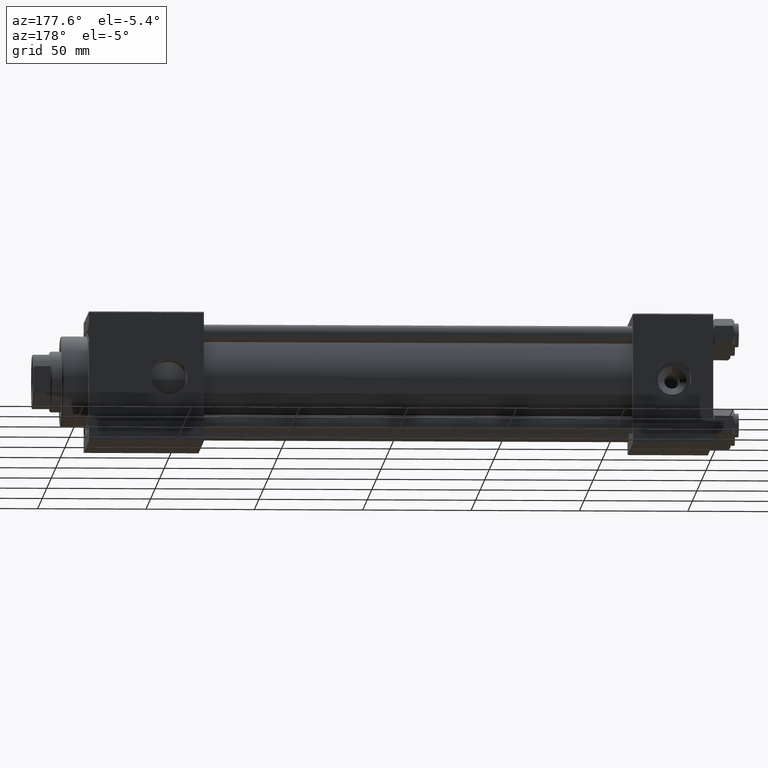
[diagram: clean part render]
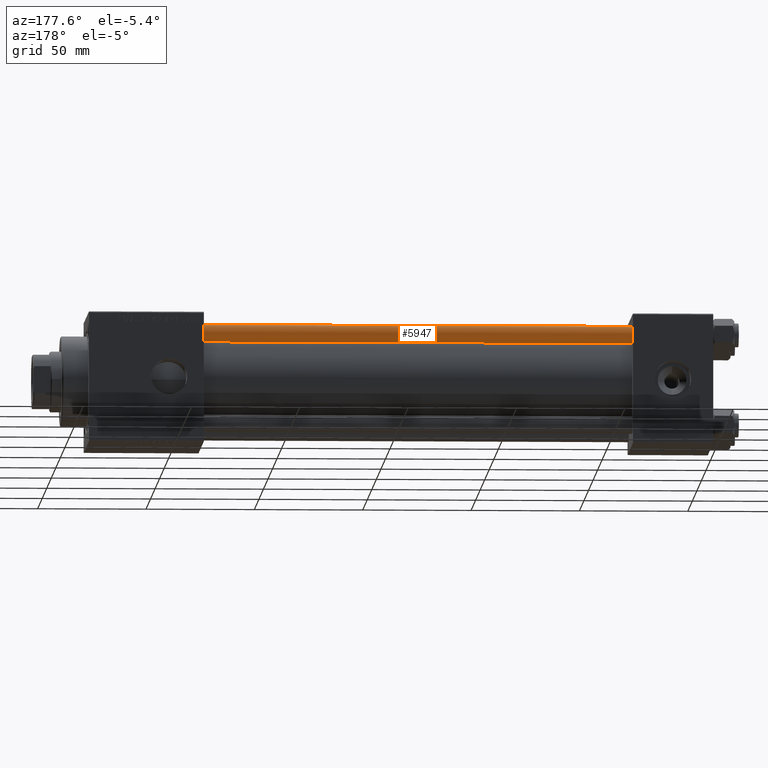
[diagram: same view with one face highlighted and labeled with its STEP entity id]
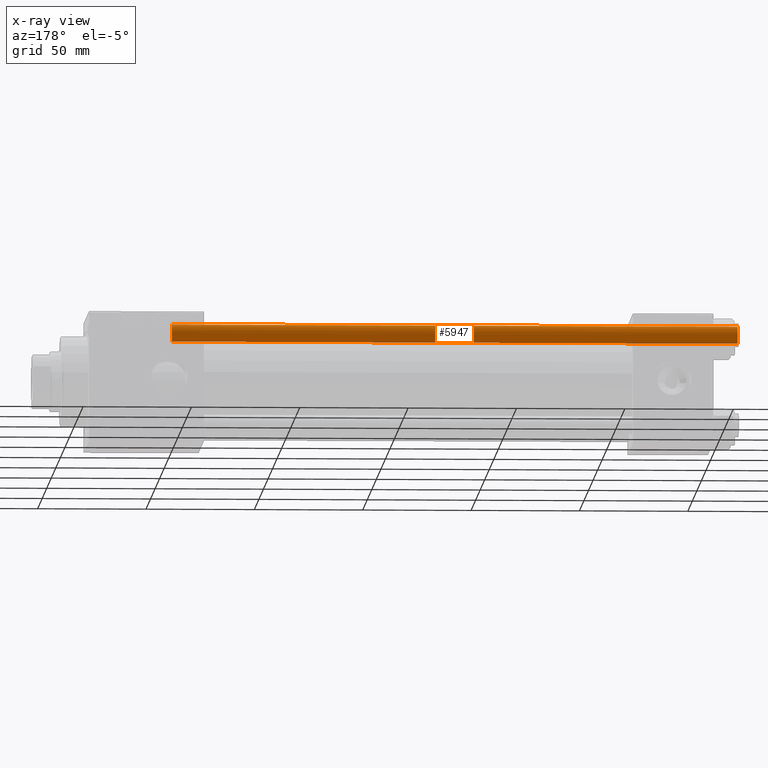
[diagram: x-ray of the same camera — body ghosted, the highlighted face saturated]
A machine part, auxiliary view. The second image highlights one B-rep face of the part: STEP entity #5947.
The next image is the same camera in x-ray: the body ghosted, the highlighted face saturated — about 0% of this face is hidden behind the body in this view.
In plain terms, the highlighted cylindrical surface (edge-blend (fillet) strip) has radius 4 mm, axis along (-1, 0, 0).
Its self-contained STEP definition (entity closure, byte-faithful):
#113 = CIRCLE ( 'NONE', #46831, 4.000000000000000000 ) ;
#4424 = DIRECTION ( 'NONE',  ( -1.000000000000000000, 0.000000000000000000, 0.000000000000000000 ) ) ;
#4858 = CARTESIAN_POINT ( 'NONE',  ( 0.000000000000000000, 0.000000000000000000, 261.5000000000000000 ) ) ;
#5947 = ADVANCED_FACE ( 'NONE', ( #32538 ), #28550, .T. ) ;
#6737 = CARTESIAN_POINT ( 'NONE',  ( 4.000000000000000000, 4.898587196589412829E-16, 262.0000000000000000 ) ) ;
#8128 = VERTEX_POINT ( 'NONE', #30590 ) ;
#8409 = DIRECTION ( 'NONE',  ( -0.000000000000000000, -0.000000000000000000, -1.000000000000000000 ) ) ;
#10594 = EDGE_CURVE ( 'NONE', #38424, #36297, #113, .T. ) ;
#11561 = DIRECTION ( 'NONE',  ( -0.000000000000000000, -0.000000000000000000, 1.000000000000000000 ) ) ;
#11598 = ORIENTED_EDGE ( 'NONE', *, *, #26057, .T. ) ;
#17361 = DIRECTION ( 'NONE',  ( -0.000000000000000000, -0.000000000000000000, -1.000000000000000000 ) ) ;
#18167 = VECTOR ( 'NONE', #17361, 1000.000000000000000 ) ;
#18888 = ORIENTED_EDGE ( 'NONE', *, *, #46194, .F. ) ;
#20648 = VERTEX_POINT ( 'NONE', #35853 ) ;
#21264 = DIRECTION ( 'NONE',  ( 0.000000000000000000, 0.000000000000000000, -1.000000000000000000 ) ) ;
#22982 = EDGE_LOOP ( 'NONE', ( #46569, #11598, #42127, #18888 ) ) ;
#23591 = CARTESIAN_POINT ( 'NONE',  ( -4.000000000000000000, 0.000000000000000000, 0.5000000000000559552 ) ) ;
#23936 = DIRECTION ( 'NONE',  ( -0.000000000000000000, -0.000000000000000000, -1.000000000000000000 ) ) ;
#24040 = CIRCLE ( 'NONE', #38465, 4.000000000000000000 ) ;
#25576 = DIRECTION ( 'NONE',  ( 1.000000000000000000, 0.000000000000000000, 0.000000000000000000 ) ) ;
#26057 = EDGE_CURVE ( 'NONE', #20648, #38424, #35887, .T. ) ;
#28550 = CYLINDRICAL_SURFACE ( 'NONE', #41152, 4.000000000000000000 ) ;
#30590 = CARTESIAN_POINT ( 'NONE',  ( -4.000000000000000000, 0.000000000000000000, 261.5000000000000000 ) ) ;
#31642 = CARTESIAN_POINT ( 'NONE',  ( 4.000000000000000000, 4.898587196589412829E-16, 0.5000000000000559552 ) ) ;
#32538 = FACE_OUTER_BOUND ( 'NONE', #22982, .T. ) ;
#34052 = CARTESIAN_POINT ( 'NONE',  ( -4.000000000000000000, 0.000000000000000000, 262.0000000000000000 ) ) ;
#35853 = CARTESIAN_POINT ( 'NONE',  ( 4.000000000000000000, 4.898587196589412829E-16, 261.5000000000000000 ) ) ;
#35887 = LINE ( 'NONE', #6737, #47169 ) ;
#36297 = VERTEX_POINT ( 'NONE', #23591 ) ;
#38285 = LINE ( 'NONE', #34052, #18167 ) ;
#38424 = VERTEX_POINT ( 'NONE', #31642 ) ;
#38465 = AXIS2_PLACEMENT_3D ( 'NONE', #4858, #21264, #45937 ) ;
#39677 = CARTESIAN_POINT ( 'NONE',  ( 0.000000000000000000, 0.000000000000000000, 0.5000000000000559552 ) ) ;
#41152 = AXIS2_PLACEMENT_3D ( 'NONE', #44745, #8409, #4424 ) ;
#42127 = ORIENTED_EDGE ( 'NONE', *, *, #10594, .T. ) ;
#44745 = CARTESIAN_POINT ( 'NONE',  ( 0.000000000000000000, 0.000000000000000000, 262.0000000000000000 ) ) ;
#45937 = DIRECTION ( 'NONE',  ( 1.000000000000000000, 0.000000000000000000, 0.000000000000000000 ) ) ;
#46194 = EDGE_CURVE ( 'NONE', #8128, #36297, #38285, .T. ) ;
#46569 = ORIENTED_EDGE ( 'NONE', *, *, #48190, .T. ) ;
#46831 = AXIS2_PLACEMENT_3D ( 'NONE', #39677, #11561, #25576 ) ;
#47169 = VECTOR ( 'NONE', #23936, 1000.000000000000000 ) ;
#48190 = EDGE_CURVE ( 'NONE', #8128, #20648, #24040, .T. ) ;